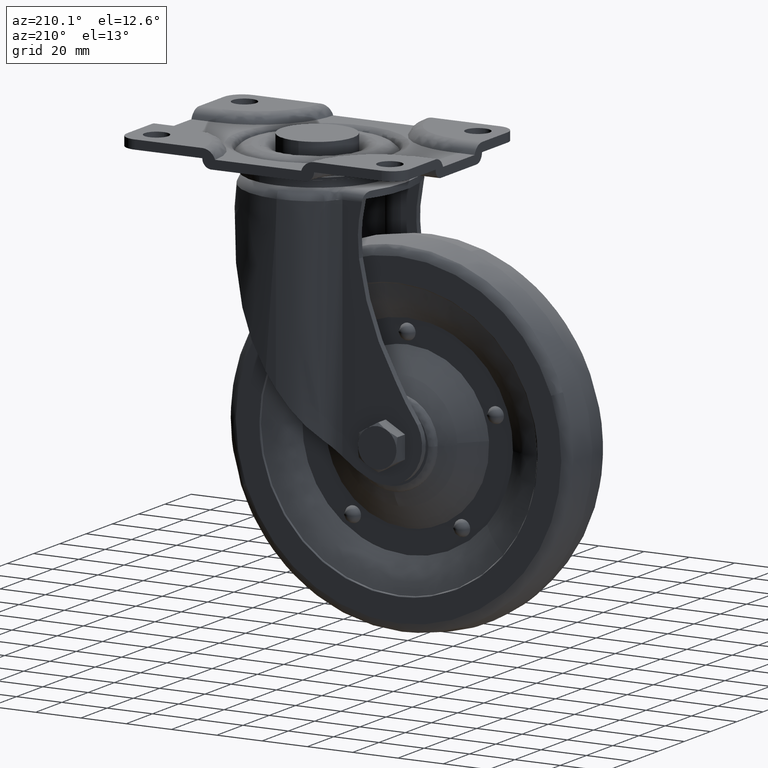
[diagram: clean part render]
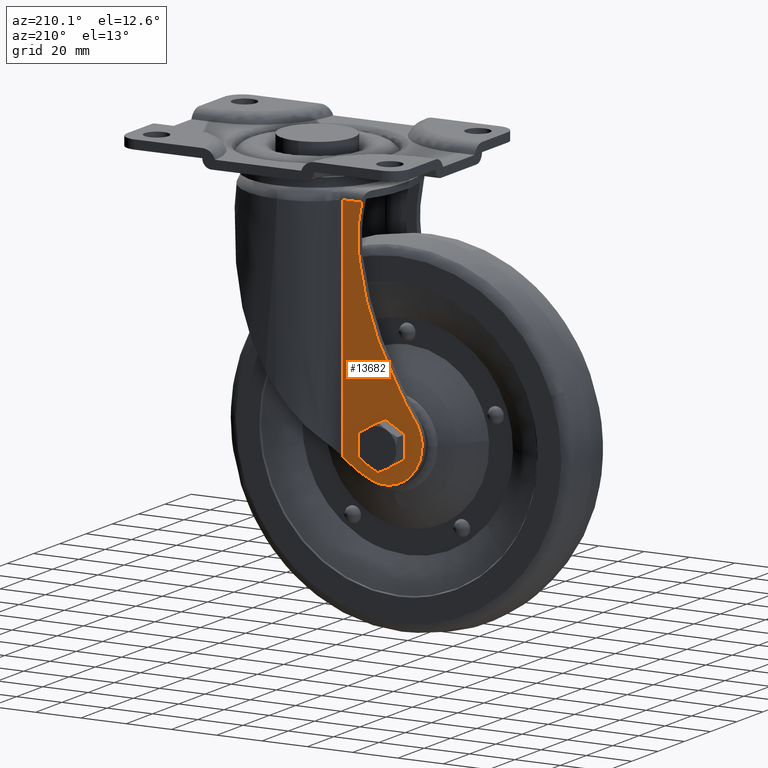
[diagram: same view with one face highlighted and labeled with its STEP entity id]
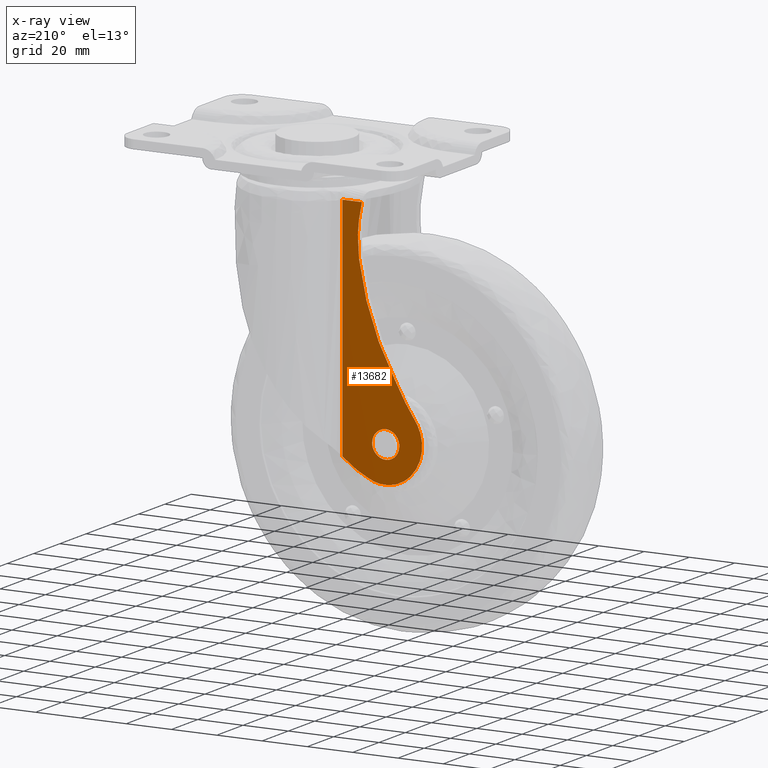
[diagram: x-ray of the same camera — body ghosted, the highlighted face saturated]
A machine part, auxiliary view. The second image highlights one B-rep face of the part: STEP entity #13682.
The next image is the same camera in x-ray: the body ghosted, the highlighted face saturated — about 0% of this face is hidden behind the body in this view.
In plain terms, the highlighted face is a freeform B-spline surface patch.
Its self-contained STEP definition (entity closure, byte-faithful):
#10376=CARTESIAN_POINT('',(-43.633647714171943,23.719169232030229,-106.510193074675200));
#10377=VERTEX_POINT('',#10376);
#10378=CARTESIAN_POINT('',(-50.000999999999998,23.722238212965209,-112.500000000000000));
#10379=VERTEX_POINT('',#10378);
#10380=CARTESIAN_POINT('',(-43.633647714171943,23.719169232030264,-106.510193074675240));
#10381=CARTESIAN_POINT('',(-43.816652867405367,23.719257438132431,-106.499000000000050));
#10382=CARTESIAN_POINT('',(-44.0,23.719345809064201,-106.499000000000000));
#10383=CARTESIAN_POINT('',(-50.000999999999976,23.722238212965209,-106.498999999999980));
#10384=CARTESIAN_POINT('',(-50.000999999999998,23.722238212965209,-112.500000000000000));
#10392=(BOUNDED_CURVE()B_SPLINE_CURVE(2,(#10380,#10381,#10382,#10383,#10384),.UNSPECIFIED.,.F.,.U.)B_SPLINE_CURVE_WITH_KNOTS((3,2,3),(0.239332962239682,0.250000000000000,0.500000000000000),.UNSPECIFIED.)CURVE()GEOMETRIC_REPRESENTATION_ITEM()RATIONAL_B_SPLINE_CURVE((0.976072041668301,0.987502787900703,1.0,0.707106781186548,1.0))REPRESENTATION_ITEM(''));
#10393=EDGE_CURVE('',#10377,#10379,#10392,.T.);
#10434=CARTESIAN_POINT('',(-44.366352285828057,23.719522386098170,-118.489806925324800));
#10435=VERTEX_POINT('',#10434);
#10441=CARTESIAN_POINT('',(-50.000999999999998,23.722238212965209,-112.500000000000000));
#10442=CARTESIAN_POINT('',(-50.000999999999991,23.722238212965209,-118.145177107426120));
#10443=CARTESIAN_POINT('',(-44.366352285828043,23.719522386098141,-118.489806925324740));
#10451=(BOUNDED_CURVE()B_SPLINE_CURVE(2,(#10441,#10442,#10443),.UNSPECIFIED.,.F.,.U.)B_SPLINE_CURVE_WITH_KNOTS((3,3),(0.500000000000000,0.739332962239682),.UNSPECIFIED.)CURVE()GEOMETRIC_REPRESENTATION_ITEM()RATIONAL_B_SPLINE_CURVE((1.0,0.719603993285845,0.976072041668301))REPRESENTATION_ITEM(''));
#10452=EDGE_CURVE('',#10379,#10435,#10451,.T.);
#10475=CARTESIAN_POINT('',(-37.999000000000002,23.716453405163190,-112.500000000000000));
#10476=VERTEX_POINT('',#10475);
#10477=CARTESIAN_POINT('',(-37.999000000000002,23.716453405163190,-112.500000000000000));
#10478=CARTESIAN_POINT('',(-37.998999999999995,23.716453405163197,-106.854822892573840));
#10479=CARTESIAN_POINT('',(-43.633647714171943,23.719169232030264,-106.510193074675240));
#10487=(BOUNDED_CURVE()B_SPLINE_CURVE(2,(#10477,#10478,#10479),.UNSPECIFIED.,.F.,.U.)B_SPLINE_CURVE_WITH_KNOTS((3,3),(0.0,0.239332962239682),.UNSPECIFIED.)CURVE()GEOMETRIC_REPRESENTATION_ITEM()RATIONAL_B_SPLINE_CURVE((1.0,0.719603993285845,0.976072041668301))REPRESENTATION_ITEM(''));
#10488=EDGE_CURVE('',#10476,#10377,#10487,.T.);
#10490=CARTESIAN_POINT('',(-44.366352285828043,23.719522386098141,-118.489806925324740));
#10491=CARTESIAN_POINT('',(-44.183347132594633,23.719434179995968,-118.501000000000020));
#10492=CARTESIAN_POINT('',(-44.0,23.719345809064201,-118.501000000000000));
#10493=CARTESIAN_POINT('',(-37.998999999999995,23.716453405163186,-118.501000000000000));
#10494=CARTESIAN_POINT('',(-37.999000000000002,23.716453405163190,-112.500000000000000));
#10502=(BOUNDED_CURVE()B_SPLINE_CURVE(2,(#10490,#10491,#10492,#10493,#10494),.UNSPECIFIED.,.F.,.U.)B_SPLINE_CURVE_WITH_KNOTS((3,2,3),(0.739332962239682,0.750000000000000,1.0),.UNSPECIFIED.)CURVE()GEOMETRIC_REPRESENTATION_ITEM()RATIONAL_B_SPLINE_CURVE((0.976072041668301,0.987502787900703,1.0,0.707106781186548,1.0))REPRESENTATION_ITEM(''));
#10503=EDGE_CURVE('',#10435,#10476,#10502,.T.);
#11416=CARTESIAN_POINT('',(-33.474773347300847,23.714272786796350,-18.800000000000001));
#11417=VERTEX_POINT('',#11416);
#11425=CARTESIAN_POINT('',(-33.220387422355962,23.714150176091248,-20.200238627534748));
#11426=VERTEX_POINT('',#11425);
#11427=CARTESIAN_POINT('',(-33.474773347300847,23.714272786796350,-18.800000000000001));
#11428=CARTESIAN_POINT('',(-33.384632136774592,23.714229339906034,-19.506850632679342));
#11429=CARTESIAN_POINT('',(-33.220387422355962,23.714150176091248,-20.200238627534748));
#11437=(BOUNDED_CURVE()B_SPLINE_CURVE(2,(#11427,#11428,#11429),.UNSPECIFIED.,.F.,.U.)CURVE()GEOMETRIC_REPRESENTATION_ITEM()QUASI_UNIFORM_CURVE()RATIONAL_B_SPLINE_CURVE((1.0,0.998602560292947,1.0))REPRESENTATION_ITEM(''));
#11438=EDGE_CURVE('',#11417,#11426,#11437,.T.);
#11532=CARTESIAN_POINT('',(-32.208179906609352,23.713662305241801,-41.071240209038450));
#11533=VERTEX_POINT('',#11532);
#11555=CARTESIAN_POINT('',(-32.208179906609388,23.713662305241790,-41.071240209038457));
#11556=CARTESIAN_POINT('',(-30.770824674431957,23.712969518726094,-30.541485015181408));
#11557=CARTESIAN_POINT('',(-33.220387422355948,23.714150176091181,-20.200238627534969));
#11565=(BOUNDED_CURVE()B_SPLINE_CURVE(2,(#11555,#11556,#11557),.UNSPECIFIED.,.F.,.U.)CURVE()GEOMETRIC_REPRESENTATION_ITEM()QUASI_UNIFORM_CURVE()RATIONAL_B_SPLINE_CURVE((1.0,0.983096652336972,1.0))REPRESENTATION_ITEM(''));
#11566=EDGE_CURVE('',#11533,#11426,#11565,.T.);
#11638=CARTESIAN_POINT('',(-48.233338139935213,23.721386222953601,-87.127121802990899));
#11639=VERTEX_POINT('',#11638);
#11661=CARTESIAN_POINT('',(-48.233338139935213,23.721386222953601,-87.127121802990899));
#11662=CARTESIAN_POINT('',(-35.572371087038292,23.715283801608095,-65.716589201574806));
#11663=CARTESIAN_POINT('',(-32.208179906609352,23.713662305241801,-41.071240209038450));
#11671=(BOUNDED_CURVE()B_SPLINE_CURVE(2,(#11661,#11662,#11663),.UNSPECIFIED.,.F.,.U.)CURVE()GEOMETRIC_REPRESENTATION_ITEM()QUASI_UNIFORM_CURVE()RATIONAL_B_SPLINE_CURVE((1.0,0.980228754175338,1.0))REPRESENTATION_ITEM(''));
#11672=EDGE_CURVE('',#11639,#11533,#11671,.T.);
#11744=CARTESIAN_POINT('',(-57.959273022513003,23.726073996990451,-103.307275449450800));
#11745=VERTEX_POINT('',#11744);
#11767=CARTESIAN_POINT('',(-57.959273022513003,23.726073996990451,-103.307275449450800));
#11768=CARTESIAN_POINT('',(-52.496600181215008,23.723441059773929,-95.577683524929654));
#11769=CARTESIAN_POINT('',(-48.233338139935412,23.721386222953530,-87.127121802990899));
#11777=(BOUNDED_CURVE()B_SPLINE_CURVE(2,(#11767,#11768,#11769),.UNSPECIFIED.,.F.,.U.)CURVE()GEOMETRIC_REPRESENTATION_ITEM()QUASI_UNIFORM_CURVE()RATIONAL_B_SPLINE_CURVE((1.0,0.997263753377206,1.0))REPRESENTATION_ITEM(''));
#11778=EDGE_CURVE('',#11745,#11639,#11777,.T.);
#11850=CARTESIAN_POINT('',(-52.101891605436698,23.723250815377401,-125.953898225679000));
#11851=VERTEX_POINT('',#11850);
#11852=CARTESIAN_POINT('',(-57.959273022512818,23.726073996990522,-103.307275449450800));
#11853=CARTESIAN_POINT('',(-65.696403224901957,23.729803193054504,-117.389222391433170));
#11854=CARTESIAN_POINT('',(-52.101891605436698,23.723250815377380,-125.953897941257100));
#11862=(BOUNDED_CURVE()B_SPLINE_CURVE(2,(#11852,#11853,#11854),.UNSPECIFIED.,.F.,.U.)CURVE()GEOMETRIC_REPRESENTATION_ITEM()QUASI_UNIFORM_CURVE()RATIONAL_B_SPLINE_CURVE((1.0,0.727924437124644,1.0))REPRESENTATION_ITEM(''));
#11863=EDGE_CURVE('',#11745,#11851,#11862,.T.);
#11956=CARTESIAN_POINT('',(-36.208002370455603,23.715590167614401,-126.457514888627200));
#11957=VERTEX_POINT('',#11956);
#11958=CARTESIAN_POINT('',(-52.101891605436712,23.723250815377309,-125.953898225679000));
#11959=CARTESIAN_POINT('',(-44.302661149012444,23.719491687799071,-130.867489715924110));
#11960=CARTESIAN_POINT('',(-36.208002370455610,23.715590167614359,-126.457515078337390));
#11968=(BOUNDED_CURVE()B_SPLINE_CURVE(2,(#11958,#11959,#11960),.UNSPECIFIED.,.F.,.U.)CURVE()GEOMETRIC_REPRESENTATION_ITEM()QUASI_UNIFORM_CURVE()RATIONAL_B_SPLINE_CURVE((1.0,0.862545011642696,1.0))REPRESENTATION_ITEM(''));
#11969=EDGE_CURVE('',#11851,#11957,#11968,.T.);
#12062=CARTESIAN_POINT('',(-31.133920985200049,23.713144526422500,-123.789671572339400));
#12063=VERTEX_POINT('',#12062);
#12064=CARTESIAN_POINT('',(-36.208002370455603,23.715590167614419,-126.457514888627200));
#12065=CARTESIAN_POINT('',(-33.569545817006912,23.714318465893410,-125.316480244656830));
#12066=CARTESIAN_POINT('',(-31.133920985200120,23.713144526422500,-123.789671572339400));
#12074=(BOUNDED_CURVE()B_SPLINE_CURVE(2,(#12064,#12065,#12066),.UNSPECIFIED.,.F.,.U.)CURVE()GEOMETRIC_REPRESENTATION_ITEM()QUASI_UNIFORM_CURVE()RATIONAL_B_SPLINE_CURVE((1.0,0.997122314548152,1.0))REPRESENTATION_ITEM(''));
#12075=EDGE_CURVE('',#11957,#12063,#12074,.T.);
#12667=CARTESIAN_POINT('',(-24.846352573767749,23.710114000276551,-18.800000000000001));
#12668=VERTEX_POINT('',#12667);
#12722=CARTESIAN_POINT('',(-33.474773347300847,23.714272786796350,-18.800000000000001));
#12723=CARTESIAN_POINT('',(-24.846352573767749,23.710114000276551,-18.800000000000001));
#12724=QUASI_UNIFORM_CURVE('',1,(#12722,#12723),.UNSPECIFIED.,.F.,.U.);
#12725=EDGE_CURVE('',#11417,#12668,#12724,.T.);
#13298=CARTESIAN_POINT('',(-24.846352573767849,23.710114000276651,-119.269769394863600));
#13299=VERTEX_POINT('',#13298);
#13300=CARTESIAN_POINT('',(-24.846352573767749,23.710114000276551,-18.800000000000001));
#13301=CARTESIAN_POINT('',(-24.846352573767849,23.710114000276651,-119.269769394863600));
#13302=QUASI_UNIFORM_CURVE('',1,(#13300,#13301),.UNSPECIFIED.,.F.,.U.);
#13303=EDGE_CURVE('',#12668,#13299,#13302,.T.);
#13647=CARTESIAN_POINT('',(-61.826488068301401,23.727937944313251,-133.845494083602600));
#13648=CARTESIAN_POINT('',(-23.087070044680040,23.709266048993420,-133.845494083602600));
#13649=CARTESIAN_POINT('',(-61.826488068301408,23.727937944313251,-13.326858133460890));
#13650=CARTESIAN_POINT('',(-23.087070044680040,23.709266048993420,-13.326858133460890));
#13651=B_SPLINE_SURFACE_WITH_KNOTS('',1,1,((#13647,#13649),(#13648,#13650)),.UNSPECIFIED.,.F.,.F.,.U.,(2,2),(2,2),(0.0,38.739422523426377),(0.0,120.518635950141700),.UNSPECIFIED.);
#13652=ORIENTED_EDGE('',*,*,#11438,.F.);
#13653=ORIENTED_EDGE('',*,*,#12725,.T.);
#13654=ORIENTED_EDGE('',*,*,#13303,.T.);
#13655=CARTESIAN_POINT('',(-31.133920985200110,23.713144526422489,-123.789671572339500));
#13656=CARTESIAN_POINT('',(-27.922632471548368,23.711596727151672,-121.623624718150610));
#13657=CARTESIAN_POINT('',(-24.846352573767899,23.710114000276668,-119.269769394863800));
#13665=(BOUNDED_CURVE()B_SPLINE_CURVE(2,(#13655,#13656,#13657),.UNSPECIFIED.,.F.,.U.)CURVE()GEOMETRIC_REPRESENTATION_ITEM()QUASI_UNIFORM_CURVE()RATIONAL_B_SPLINE_CURVE((1.0,0.999554195537508,1.0))REPRESENTATION_ITEM(''));
#13666=EDGE_CURVE('',#12063,#13299,#13665,.T.);
#13667=ORIENTED_EDGE('',*,*,#13666,.F.);
#13668=ORIENTED_EDGE('',*,*,#12075,.F.);
#13669=ORIENTED_EDGE('',*,*,#11969,.F.);
#13670=ORIENTED_EDGE('',*,*,#11863,.F.);
#13671=ORIENTED_EDGE('',*,*,#11778,.T.);
#13672=ORIENTED_EDGE('',*,*,#11672,.T.);
#13673=ORIENTED_EDGE('',*,*,#11566,.T.);
#13674=EDGE_LOOP('',(#13652,#13653,#13654,#13667,#13668,#13669,#13670,#13671,#13672,#13673));
#13675=FACE_OUTER_BOUND('',#13674,.T.);
#13676=ORIENTED_EDGE('',*,*,#10452,.T.);
#13677=ORIENTED_EDGE('',*,*,#10503,.T.);
#13678=ORIENTED_EDGE('',*,*,#10488,.T.);
#13679=ORIENTED_EDGE('',*,*,#10393,.T.);
#13680=EDGE_LOOP('',(#13676,#13677,#13678,#13679));
#13681=FACE_BOUND('',#13680,.T.);
#13682=ADVANCED_FACE('',(#13675,#13681),#13651,.F.);